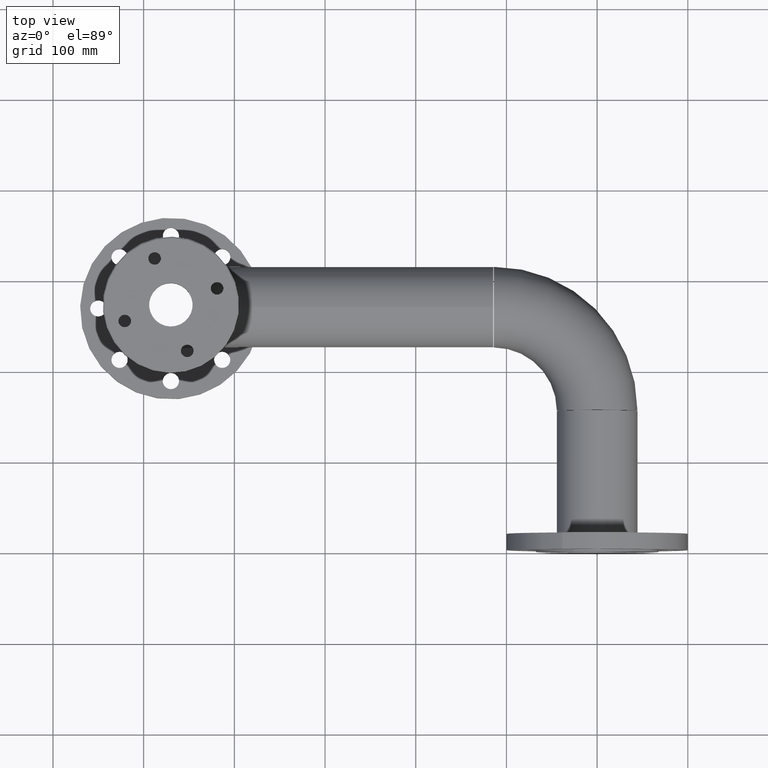
[diagram: clean part render]
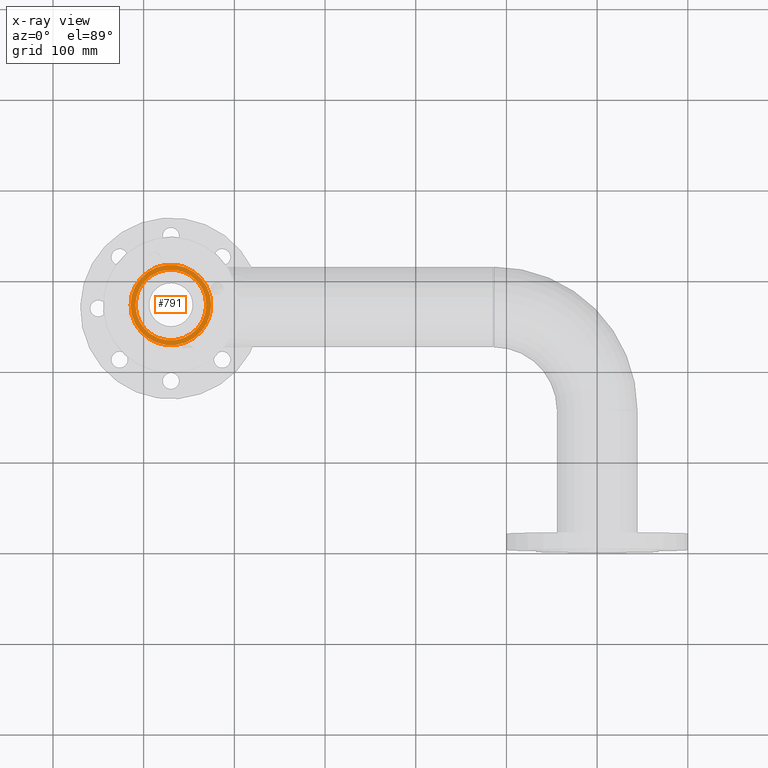
[diagram: x-ray — body ghosted, one internal face saturated and labeled with its STEP entity id]
A machine part, top view, then the same camera in x-ray: the body is ghosted and one INTERNAL B-rep face — a face not visible from any outside direction — is saturated and labeled: STEP entity #791.
In plain terms, the highlighted planar face has unit normal (0, 0, 1).
Its self-contained STEP definition (entity closure, byte-faithful):
#32 = ORIENTED_EDGE ( 'NONE', *, *, #2890, .T. ) ;
#292 = FACE_OUTER_BOUND ( 'NONE', #743, .T. ) ;
#354 = PLANE ( 'NONE',  #1851 ) ;
#372 = EDGE_CURVE ( 'NONE', #1025, #3329, #2955, .T. ) ;
#417 = CIRCLE ( 'NONE', #3069, 44.45000000000004547 ) ;
#434 = EDGE_CURVE ( 'NONE', #2421, #2494, #417, .T. ) ;
#542 = CARTESIAN_POINT ( 'NONE',  ( -431.0499999999999545, 270.0000000000076739, 131.0000000000000284 ) ) ;
#699 = DIRECTION ( 'NONE',  ( 0.000000000000000000, 0.000000000000000000, 1.000000000000000000 ) ) ;
#722 = DIRECTION ( 'NONE',  ( 0.000000000000000000, 0.000000000000000000, 1.000000000000000000 ) ) ;
#743 = EDGE_LOOP ( 'NONE', ( #32, #1296 ) ) ;
#791 = ADVANCED_FACE ( 'NONE', ( #2083, #292 ), #354, .T. ) ;
#839 = DIRECTION ( 'NONE',  ( 1.000000000000000000, 0.000000000000000000, -0.000000000000000000 ) ) ;
#1019 = CARTESIAN_POINT ( 'NONE',  ( -470.0000000000000000, 270.0000000000076739, 131.0000000000000284 ) ) ;
#1025 = VERTEX_POINT ( 'NONE', #3055 ) ;
#1114 = DIRECTION ( 'NONE',  ( 1.000000000000000000, 0.000000000000000000, 0.000000000000000000 ) ) ;
#1296 = ORIENTED_EDGE ( 'NONE', *, *, #434, .T. ) ;
#1320 = CIRCLE ( 'NONE', #3263, 44.45000000000004547 ) ;
#1329 = EDGE_LOOP ( 'NONE', ( #2855, #1909 ) ) ;
#1344 = AXIS2_PLACEMENT_3D ( 'NONE', #3219, #2952, #1114 ) ;
#1350 = CARTESIAN_POINT ( 'NONE',  ( -470.0000000000000000, 270.0000000000076739, 131.0000000000000284 ) ) ;
#1745 = DIRECTION ( 'NONE',  ( 1.000000000000000000, 0.000000000000000000, 0.000000000000000000 ) ) ;
#1781 = CARTESIAN_POINT ( 'NONE',  ( -470.0000000000000000, 270.0000000000076739, 131.0000000000000284 ) ) ;
#1851 = AXIS2_PLACEMENT_3D ( 'NONE', #1350, #3001, #839 ) ;
#1909 = ORIENTED_EDGE ( 'NONE', *, *, #3162, .F. ) ;
#2083 = FACE_BOUND ( 'NONE', #1329, .T. ) ;
#2261 = CARTESIAN_POINT ( 'NONE',  ( -470.0000000000000000, 270.0000000000076739, 131.0000000000000284 ) ) ;
#2421 = VERTEX_POINT ( 'NONE', #2610 ) ;
#2494 = VERTEX_POINT ( 'NONE', #3168 ) ;
#2516 = DIRECTION ( 'NONE',  ( 1.000000000000000000, 0.000000000000000000, 0.000000000000000000 ) ) ;
#2610 = CARTESIAN_POINT ( 'NONE',  ( -425.5499999999999545, 270.0000000000076739, 131.0000000000000284 ) ) ;
#2815 = AXIS2_PLACEMENT_3D ( 'NONE', #1019, #3378, #2817 ) ;
#2817 = DIRECTION ( 'NONE',  ( 1.000000000000000000, 0.000000000000000000, 0.000000000000000000 ) ) ;
#2855 = ORIENTED_EDGE ( 'NONE', *, *, #372, .F. ) ;
#2890 = EDGE_CURVE ( 'NONE', #2494, #2421, #1320, .T. ) ;
#2952 = DIRECTION ( 'NONE',  ( 0.000000000000000000, 0.000000000000000000, 1.000000000000000000 ) ) ;
#2955 = CIRCLE ( 'NONE', #1344, 38.95000000000003837 ) ;
#2984 = CIRCLE ( 'NONE', #2815, 38.95000000000003837 ) ;
#3001 = DIRECTION ( 'NONE',  ( 0.000000000000000000, 0.000000000000000000, 1.000000000000000000 ) ) ;
#3055 = CARTESIAN_POINT ( 'NONE',  ( -508.9499999999999886, 270.0000000000076739, 131.0000000000000284 ) ) ;
#3069 = AXIS2_PLACEMENT_3D ( 'NONE', #1781, #722, #2516 ) ;
#3162 = EDGE_CURVE ( 'NONE', #3329, #1025, #2984, .T. ) ;
#3168 = CARTESIAN_POINT ( 'NONE',  ( -514.4499999999999318, 270.0000000000076739, 131.0000000000000284 ) ) ;
#3219 = CARTESIAN_POINT ( 'NONE',  ( -470.0000000000000000, 270.0000000000076739, 131.0000000000000284 ) ) ;
#3263 = AXIS2_PLACEMENT_3D ( 'NONE', #2261, #699, #1745 ) ;
#3329 = VERTEX_POINT ( 'NONE', #542 ) ;
#3378 = DIRECTION ( 'NONE',  ( 0.000000000000000000, 0.000000000000000000, 1.000000000000000000 ) ) ;